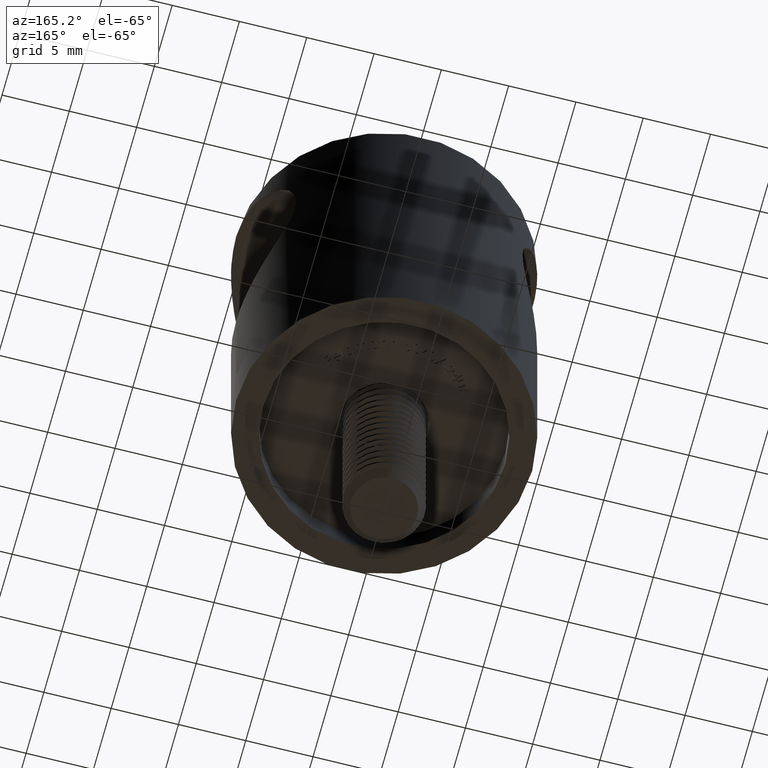
[diagram: clean part render]
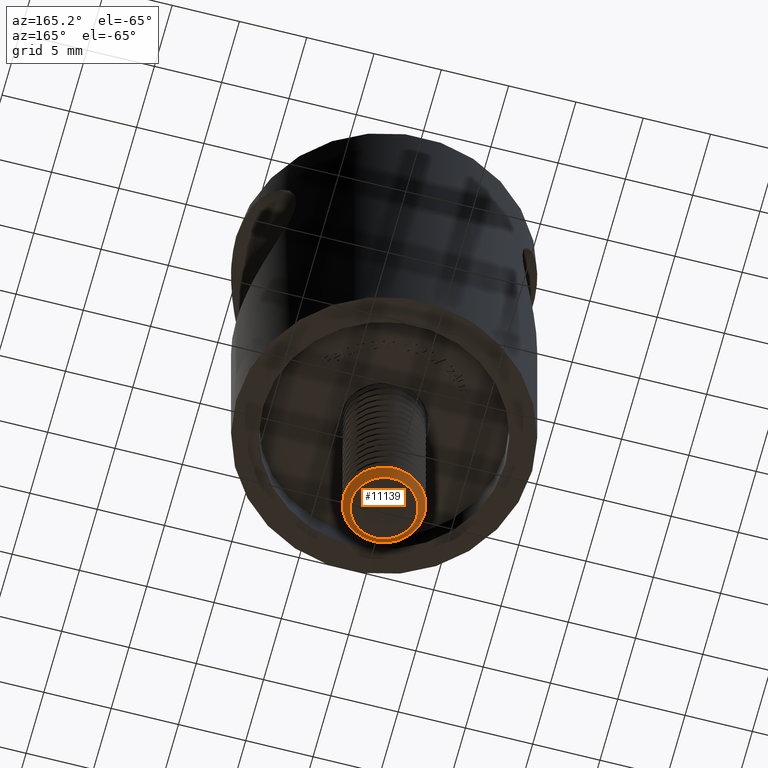
[diagram: same view with one face highlighted and labeled with its STEP entity id]
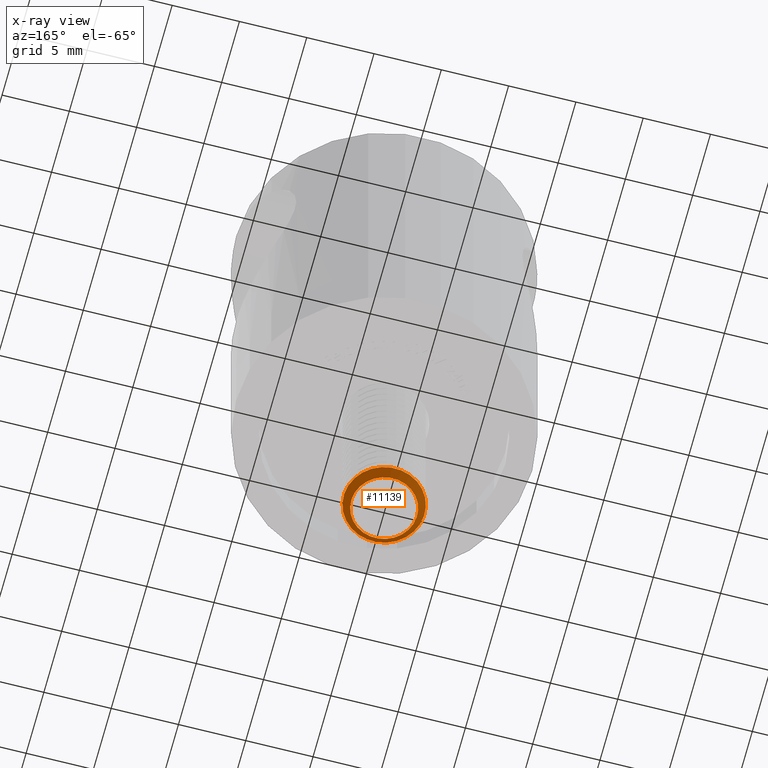
[diagram: x-ray of the same camera — body ghosted, the highlighted face saturated]
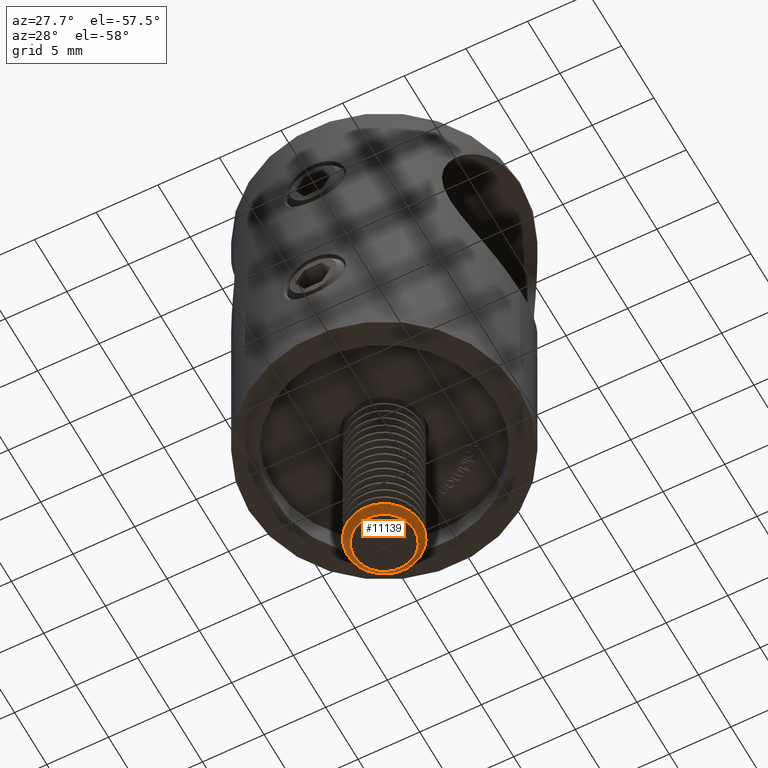
[diagram: same view with one face highlighted and labeled with its STEP entity id]
A machine part, auxiliary view. The second image highlights one B-rep face of the part: STEP entity #11139.
The next image is the same camera in x-ray: the body ghosted, the highlighted face saturated — about 0% of this face is hidden behind the body in this view.
A second angle (auxiliary view) of the same face is appended — the face is thin or edge-on in the first view.
In plain terms, the highlighted conical surface has half-angle 45 deg.
Its self-contained STEP definition (entity closure, byte-faithful):
#984 = ORIENTED_EDGE ( 'NONE', *, *, #3304, .F. ) ;
#1340 = CARTESIAN_POINT ( 'NONE',  ( 24.44550000000003100, 0.0000000000000000000, 3.000000000000000900 ) ) ;
#1561 = CONICAL_SURFACE ( 'NONE', #12807, 2.445500000000000000, 0.7853981633974744800 ) ;
#2318 = EDGE_CURVE ( 'NONE', #11272, #11272, #11658, .T. ) ;
#3189 = CARTESIAN_POINT ( 'NONE',  ( 24.44550000000003100, 0.0000000000000000000, 0.0000000000000000000 ) ) ;
#3304 = EDGE_CURVE ( 'NONE', #7881, #7881, #7443, .T. ) ;
#4036 = AXIS2_PLACEMENT_3D ( 'NONE', #3189, #8099, #13084 ) ;
#7443 = CIRCLE ( 'NONE', #4036, 3.000000000000000900 ) ;
#7881 = VERTEX_POINT ( 'NONE', #1340 ) ;
#8099 = DIRECTION ( 'NONE',  ( -1.000000000000000000, -0.0000000000000000000, -0.0000000000000000000 ) ) ;
#8254 = CARTESIAN_POINT ( 'NONE',  ( 25.00000000000000000, 0.0000000000000000000, 0.0000000000000000000 ) ) ;
#11051 = DIRECTION ( 'NONE',  ( 0.0000000000000000000, 0.0000000000000000000, 1.000000000000000000 ) ) ;
#11139 = ADVANCED_FACE ( 'NONE', ( #13868, #20918 ), #1561, .T. ) ;
#11272 = VERTEX_POINT ( 'NONE', #21354 ) ;
#11658 = CIRCLE ( 'NONE', #21671, 2.445500000000000000 ) ;
#12807 = AXIS2_PLACEMENT_3D ( 'NONE', #15884, #21065, #11051 ) ;
#13084 = DIRECTION ( 'NONE',  ( 0.0000000000000000000, 0.0000000000000000000, 1.000000000000000000 ) ) ;
#13868 = FACE_OUTER_BOUND ( 'NONE', #20897, .T. ) ;
#13938 = EDGE_LOOP ( 'NONE', ( #20915 ) ) ;
#14619 = DIRECTION ( 'NONE',  ( 0.0000000000000000000, 0.0000000000000000000, 1.000000000000000000 ) ) ;
#15884 = CARTESIAN_POINT ( 'NONE',  ( 25.00000000000000000, 0.0000000000000000000, 0.0000000000000000000 ) ) ;
#16569 = DIRECTION ( 'NONE',  ( -1.000000000000000000, -0.0000000000000000000, -0.0000000000000000000 ) ) ;
#20897 = EDGE_LOOP ( 'NONE', ( #984 ) ) ;
#20915 = ORIENTED_EDGE ( 'NONE', *, *, #2318, .T. ) ;
#20918 = FACE_BOUND ( 'NONE', #13938, .T. ) ;
#21065 = DIRECTION ( 'NONE',  ( -1.000000000000000000, -0.0000000000000000000, -0.0000000000000000000 ) ) ;
#21354 = CARTESIAN_POINT ( 'NONE',  ( 25.00000000000000000, 0.0000000000000000000, 2.445500000000000000 ) ) ;
#21671 = AXIS2_PLACEMENT_3D ( 'NONE', #8254, #16569, #14619 ) ;